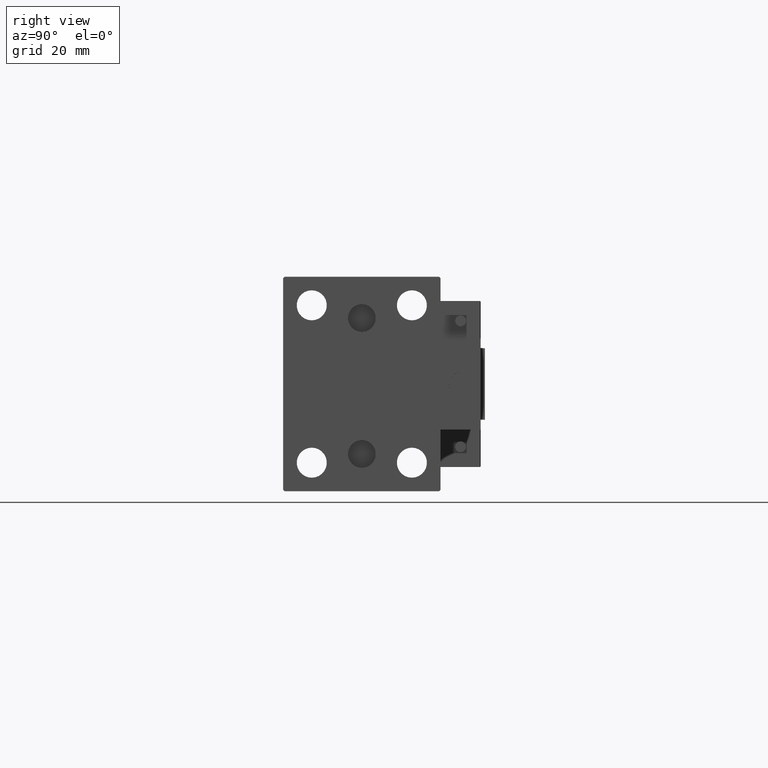
[diagram: clean part render]
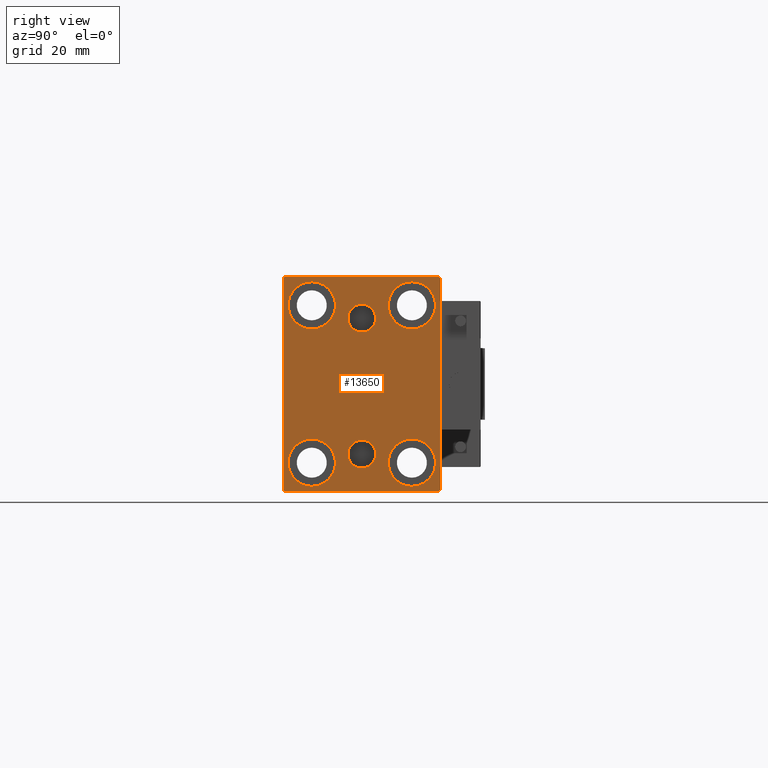
[diagram: same view with one face highlighted and labeled with its STEP entity id]
A machine part, right view. The second image highlights one B-rep face of the part: STEP entity #13650.
In plain terms, the highlighted planar face has unit normal (1, 0, 0).
Its self-contained STEP definition (entity closure, byte-faithful):
#346 = EDGE_CURVE ( 'NONE', #24709, #14727, #20099, .T. ) ;
#503 = AXIS2_PLACEMENT_3D ( 'NONE', #25691, #14203, #26458 ) ;
#611 = EDGE_CURVE ( 'NONE', #32002, #11946, #22397, .T. ) ;
#1057 = CARTESIAN_POINT ( 'NONE',  ( 135.0000000000000000, 17.50000000000000355, 27.49999999999999645 ) ) ;
#1533 = AXIS2_PLACEMENT_3D ( 'NONE', #27899, #44313, #43815 ) ;
#1645 = CIRCLE ( 'NONE', #30806, 8.249999999999992895 ) ;
#1769 = LINE ( 'NONE', #41937, #25521 ) ;
#1827 = CIRCLE ( 'NONE', #41815, 4.859999999999999432 ) ;
#2382 = ORIENTED_EDGE ( 'NONE', *, *, #43770, .T. ) ;
#2464 = CARTESIAN_POINT ( 'NONE',  ( 135.0000000000000000, 17.49999999999999645, -27.50000000000000355 ) ) ;
#2597 = EDGE_LOOP ( 'NONE', ( #34780, #27826 ) ) ;
#2898 = DIRECTION ( 'NONE',  ( -1.000000000000000000, -0.000000000000000000, -0.000000000000000000 ) ) ;
#2957 = CARTESIAN_POINT ( 'NONE',  ( 135.0000000000000000, -27.00000000000001776, -37.50000000000000000 ) ) ;
#3002 = CIRCLE ( 'NONE', #503, 8.249999999999992895 ) ;
#3381 = EDGE_CURVE ( 'NONE', #24935, #34327, #43378, .T. ) ;
#3666 = DIRECTION ( 'NONE',  ( 0.000000000000000000, 0.000000000000000000, 1.000000000000000000 ) ) ;
#4171 = VERTEX_POINT ( 'NONE', #37946 ) ;
#4650 = CARTESIAN_POINT ( 'NONE',  ( 135.0000000000000000, 17.49999999999999645, -27.50000000000000355 ) ) ;
#4865 = DIRECTION ( 'NONE',  ( 0.000000000000000000, 1.000000000000000000, 0.000000000000000000 ) ) ;
#5160 = DIRECTION ( 'NONE',  ( 0.000000000000000000, 0.000000000000000000, 1.000000000000000000 ) ) ;
#5422 = ORIENTED_EDGE ( 'NONE', *, *, #37830, .T. ) ;
#5835 = CARTESIAN_POINT ( 'NONE',  ( 135.0000000000000000, 0.000000000000000000, 0.000000000000000000 ) ) ;
#6085 = FACE_BOUND ( 'NONE', #13701, .T. ) ;
#6199 = DIRECTION ( 'NONE',  ( 1.000000000000000000, 0.000000000000000000, -0.000000000000000000 ) ) ;
#6921 = AXIS2_PLACEMENT_3D ( 'NONE', #39655, #2898, #3666 ) ;
#6972 = ORIENTED_EDGE ( 'NONE', *, *, #3381, .T. ) ;
#7176 = ORIENTED_EDGE ( 'NONE', *, *, #45631, .T. ) ;
#7182 = CARTESIAN_POINT ( 'NONE',  ( 135.0000000000000000, 27.49999999999999645, 37.00000000000004263 ) ) ;
#7245 = LINE ( 'NONE', #12686, #18157 ) ;
#8057 = CARTESIAN_POINT ( 'NONE',  ( 135.0000000000000000, 27.00000000000002487, 37.50000000000000711 ) ) ;
#8370 = EDGE_CURVE ( 'NONE', #10464, #4171, #7245, .T. ) ;
#8695 = CIRCLE ( 'NONE', #16083, 4.859999999999999432 ) ;
#8724 = CARTESIAN_POINT ( 'NONE',  ( 135.0000000000000000, -32.24999999999963052, -32.25000000000052580 ) ) ;
#9229 = DIRECTION ( 'NONE',  ( 1.000000000000000000, 0.000000000000000000, 0.000000000000000000 ) ) ;
#9394 = VERTEX_POINT ( 'NONE', #17512 ) ;
#9502 = ORIENTED_EDGE ( 'NONE', *, *, #611, .T. ) ;
#9552 = AXIS2_PLACEMENT_3D ( 'NONE', #11990, #35217, #27909 ) ;
#9622 = EDGE_CURVE ( 'NONE', #51566, #45605, #24027, .T. ) ;
#10464 = VERTEX_POINT ( 'NONE', #2957 ) ;
#10823 = DIRECTION ( 'NONE',  ( 0.000000000000000000, 0.000000000000000000, 1.000000000000000000 ) ) ;
#11665 = DIRECTION ( 'NONE',  ( 0.000000000000000000, -1.000000000000000000, -1.261617073437677999E-16 ) ) ;
#11946 = VERTEX_POINT ( 'NONE', #8057 ) ;
#11990 = CARTESIAN_POINT ( 'NONE',  ( 135.0000000000000000, -17.50000000000000355, -27.50000000000000355 ) ) ;
#12139 = DIRECTION ( 'NONE',  ( -1.000000000000000000, -0.000000000000000000, -0.000000000000000000 ) ) ;
#12647 = VECTOR ( 'NONE', #23349, 1000.000000000000000 ) ;
#12686 = CARTESIAN_POINT ( 'NONE',  ( 135.0000000000000000, -27.50000000000000355, -37.50000000000000000 ) ) ;
#12739 = AXIS2_PLACEMENT_3D ( 'NONE', #4650, #36232, #5160 ) ;
#13042 = DIRECTION ( 'NONE',  ( 0.000000000000000000, 0.000000000000000000, 1.000000000000000000 ) ) ;
#13185 = CARTESIAN_POINT ( 'NONE',  ( 135.0000000000000000, -17.49999999999999645, 19.25000000000000000 ) ) ;
#13650 = ADVANCED_FACE ( 'NONE', ( #21228, #6085, #49129, #29052, #21749, #33466, #41575 ), #44955, .T. ) ;
#13674 = DIRECTION ( 'NONE',  ( 0.000000000000000000, 0.000000000000000000, 1.000000000000000000 ) ) ;
#13701 = EDGE_LOOP ( 'NONE', ( #42667, #43064 ) ) ;
#14030 = CARTESIAN_POINT ( 'NONE',  ( 135.0000000000000000, -17.49999999999999645, 35.74999999999999289 ) ) ;
#14203 = DIRECTION ( 'NONE',  ( -1.000000000000000000, -0.000000000000000000, -0.000000000000000000 ) ) ;
#14727 = VERTEX_POINT ( 'NONE', #36038 ) ;
#14879 = VERTEX_POINT ( 'NONE', #33444 ) ;
#14997 = LINE ( 'NONE', #15261, #12647 ) ;
#15261 = CARTESIAN_POINT ( 'NONE',  ( 135.0000000000000000, 27.50000000000000355, -37.50000000000000000 ) ) ;
#15280 = EDGE_CURVE ( 'NONE', #25076, #38659, #1645, .T. ) ;
#15461 = CARTESIAN_POINT ( 'NONE',  ( 135.0000000000000000, -17.50000000000000355, -27.50000000000000355 ) ) ;
#15704 = CIRCLE ( 'NONE', #25672, 8.250000000000000000 ) ;
#16061 = VECTOR ( 'NONE', #33229, 1000.000000000000114 ) ;
#16083 = AXIS2_PLACEMENT_3D ( 'NONE', #41414, #6199, #26021 ) ;
#16516 = ORIENTED_EDGE ( 'NONE', *, *, #346, .T. ) ;
#16643 = DIRECTION ( 'NONE',  ( -0.000000000000000000, -0.7071067811865524577, 0.7071067811865426878 ) ) ;
#16977 = DIRECTION ( 'NONE',  ( -1.000000000000000000, -0.000000000000000000, -0.000000000000000000 ) ) ;
#17019 = VERTEX_POINT ( 'NONE', #13185 ) ;
#17512 = CARTESIAN_POINT ( 'NONE',  ( 135.0000000000000000, -27.00000000000001776, 37.50000000000000000 ) ) ;
#17624 = AXIS2_PLACEMENT_3D ( 'NONE', #28060, #12139, #51282 ) ;
#18027 = CARTESIAN_POINT ( 'NONE',  ( 135.0000000000000000, 17.50000000000000355, 19.25000000000000000 ) ) ;
#18157 = VECTOR ( 'NONE', #4865, 1000.000000000000000 ) ;
#18431 = CARTESIAN_POINT ( 'NONE',  ( 135.0000000000000000, -27.50000000000000355, 37.00000000000001421 ) ) ;
#19292 = EDGE_CURVE ( 'NONE', #9394, #24709, #48769, .T. ) ;
#19814 = EDGE_CURVE ( 'NONE', #50087, #17019, #39255, .T. ) ;
#19817 = VECTOR ( 'NONE', #16643, 1000.000000000000000 ) ;
#19883 = ORIENTED_EDGE ( 'NONE', *, *, #19292, .T. ) ;
#20099 = LINE ( 'NONE', #31831, #46462 ) ;
#20708 = AXIS2_PLACEMENT_3D ( 'NONE', #5835, #9229, #45213 ) ;
#20786 = EDGE_LOOP ( 'NONE', ( #22116, #19883, #16516, #47922, #51250, #7176, #42726, #9502 ) ) ;
#21044 = EDGE_CURVE ( 'NONE', #42396, #32002, #14997, .T. ) ;
#21084 = EDGE_CURVE ( 'NONE', #30205, #14879, #1827, .T. ) ;
#21228 = FACE_BOUND ( 'NONE', #45937, .T. ) ;
#21481 = EDGE_LOOP ( 'NONE', ( #2382, #41692 ) ) ;
#21749 = FACE_BOUND ( 'NONE', #30138, .T. ) ;
#22116 = ORIENTED_EDGE ( 'NONE', *, *, #50132, .T. ) ;
#22397 = LINE ( 'NONE', #50305, #19817 ) ;
#23168 = EDGE_CURVE ( 'NONE', #14727, #10464, #51523, .T. ) ;
#23349 = DIRECTION ( 'NONE',  ( 0.000000000000000000, -9.251858538542970348E-17, 1.000000000000000000 ) ) ;
#23960 = DIRECTION ( 'NONE',  ( 0.000000000000000000, 0.000000000000000000, -1.000000000000000000 ) ) ;
#24005 = DIRECTION ( 'NONE',  ( 0.000000000000000000, 0.000000000000000000, -1.000000000000000000 ) ) ;
#24027 = CIRCLE ( 'NONE', #1533, 4.859999999999999432 ) ;
#24709 = VERTEX_POINT ( 'NONE', #18431 ) ;
#24935 = VERTEX_POINT ( 'NONE', #49659 ) ;
#25043 = CARTESIAN_POINT ( 'NONE',  ( 135.0000000000000000, -32.25000000000000711, 32.25000000000000711 ) ) ;
#25076 = VERTEX_POINT ( 'NONE', #27214 ) ;
#25367 = ORIENTED_EDGE ( 'NONE', *, *, #26732, .T. ) ;
#25504 = CARTESIAN_POINT ( 'NONE',  ( 135.0000000000000000, -3.571693674697836683E-15, 18.14000000000000767 ) ) ;
#25521 = VECTOR ( 'NONE', #26022, 1000.000000000000114 ) ;
#25672 = AXIS2_PLACEMENT_3D ( 'NONE', #15461, #31360, #40467 ) ;
#25691 = CARTESIAN_POINT ( 'NONE',  ( 135.0000000000000000, -17.49999999999999645, 27.49999999999999645 ) ) ;
#26014 = ORIENTED_EDGE ( 'NONE', *, *, #15280, .T. ) ;
#26021 = DIRECTION ( 'NONE',  ( 0.000000000000000000, 0.000000000000000000, 1.000000000000000000 ) ) ;
#26022 = DIRECTION ( 'NONE',  ( -0.000000000000000000, 0.7071067811865474617, 0.7071067811865474617 ) ) ;
#26458 = DIRECTION ( 'NONE',  ( 0.000000000000000000, 0.000000000000000000, 1.000000000000000000 ) ) ;
#26732 = EDGE_CURVE ( 'NONE', #38659, #25076, #42822, .T. ) ;
#27214 = CARTESIAN_POINT ( 'NONE',  ( 135.0000000000000000, 17.50000000000000355, 35.74999999999999289 ) ) ;
#27587 = LINE ( 'NONE', #51309, #40672 ) ;
#27826 = ORIENTED_EDGE ( 'NONE', *, *, #40708, .T. ) ;
#27899 = CARTESIAN_POINT ( 'NONE',  ( 135.0000000000000000, -3.571693674697836683E-15, 23.00000000000000711 ) ) ;
#27909 = DIRECTION ( 'NONE',  ( 0.000000000000000000, 0.000000000000000000, 1.000000000000000000 ) ) ;
#28060 = CARTESIAN_POINT ( 'NONE',  ( 135.0000000000000000, -17.49999999999999645, 27.49999999999999645 ) ) ;
#28448 = VECTOR ( 'NONE', #49552, 1000.000000000000114 ) ;
#29052 = FACE_BOUND ( 'NONE', #21481, .T. ) ;
#30138 = EDGE_LOOP ( 'NONE', ( #25367, #26014 ) ) ;
#30205 = VERTEX_POINT ( 'NONE', #49406 ) ;
#30370 = DIRECTION ( 'NONE',  ( -1.000000000000000000, -0.000000000000000000, -0.000000000000000000 ) ) ;
#30806 = AXIS2_PLACEMENT_3D ( 'NONE', #1057, #16977, #13042 ) ;
#31360 = DIRECTION ( 'NONE',  ( -1.000000000000000000, -0.000000000000000000, -0.000000000000000000 ) ) ;
#31831 = CARTESIAN_POINT ( 'NONE',  ( 135.0000000000000000, -27.50000000000000355, 37.50000000000000000 ) ) ;
#32002 = VERTEX_POINT ( 'NONE', #7182 ) ;
#33229 = DIRECTION ( 'NONE',  ( -0.000000000000000000, 0.7071067811865573427, -0.7071067811865376918 ) ) ;
#33444 = CARTESIAN_POINT ( 'NONE',  ( 135.0000000000000000, 3.000384657911015074E-15, -29.35999999999999233 ) ) ;
#33466 = FACE_BOUND ( 'NONE', #2597, .T. ) ;
#34272 = CARTESIAN_POINT ( 'NONE',  ( 135.0000000000000000, 27.50000000000000355, -37.00000000000001421 ) ) ;
#34327 = VERTEX_POINT ( 'NONE', #49160 ) ;
#34780 = ORIENTED_EDGE ( 'NONE', *, *, #49673, .T. ) ;
#34938 = VERTEX_POINT ( 'NONE', #43722 ) ;
#35217 = DIRECTION ( 'NONE',  ( -1.000000000000000000, -0.000000000000000000, -0.000000000000000000 ) ) ;
#35451 = CARTESIAN_POINT ( 'NONE',  ( 135.0000000000000000, -3.571693674697836683E-15, 23.00000000000000711 ) ) ;
#35580 = CIRCLE ( 'NONE', #38901, 4.859999999999999432 ) ;
#36038 = CARTESIAN_POINT ( 'NONE',  ( 135.0000000000000000, -27.50000000000000355, -37.00000000000002842 ) ) ;
#36232 = DIRECTION ( 'NONE',  ( -1.000000000000000000, -0.000000000000000000, -0.000000000000000000 ) ) ;
#36849 = EDGE_CURVE ( 'NONE', #14879, #30205, #8695, .T. ) ;
#36958 = EDGE_LOOP ( 'NONE', ( #6972, #5422 ) ) ;
#37830 = EDGE_CURVE ( 'NONE', #34327, #24935, #51106, .T. ) ;
#37946 = CARTESIAN_POINT ( 'NONE',  ( 135.0000000000000000, 27.00000000000001776, -37.50000000000000000 ) ) ;
#38440 = CARTESIAN_POINT ( 'NONE',  ( 135.0000000000000000, -2.976515330312223406E-15, 27.86000000000000654 ) ) ;
#38659 = VERTEX_POINT ( 'NONE', #18027 ) ;
#38901 = AXIS2_PLACEMENT_3D ( 'NONE', #35451, #47442, #23960 ) ;
#39255 = CIRCLE ( 'NONE', #17624, 8.249999999999992895 ) ;
#39655 = CARTESIAN_POINT ( 'NONE',  ( 135.0000000000000000, 17.50000000000000355, 27.49999999999999645 ) ) ;
#40467 = DIRECTION ( 'NONE',  ( 0.000000000000000000, 0.000000000000000000, 1.000000000000000000 ) ) ;
#40672 = VECTOR ( 'NONE', #11665, 1000.000000000000000 ) ;
#40708 = EDGE_CURVE ( 'NONE', #34938, #51392, #48675, .T. ) ;
#41414 = CARTESIAN_POINT ( 'NONE',  ( 135.0000000000000000, 3.000384657911015074E-15, -24.49999999999999289 ) ) ;
#41575 = FACE_OUTER_BOUND ( 'NONE', #20786, .T. ) ;
#41692 = ORIENTED_EDGE ( 'NONE', *, *, #19814, .T. ) ;
#41815 = AXIS2_PLACEMENT_3D ( 'NONE', #42394, #46555, #10823 ) ;
#41937 = CARTESIAN_POINT ( 'NONE',  ( 135.0000000000000000, 32.25000000000000711, -32.25000000000000711 ) ) ;
#42394 = CARTESIAN_POINT ( 'NONE',  ( 135.0000000000000000, 3.000384657911015074E-15, -24.49999999999999289 ) ) ;
#42396 = VERTEX_POINT ( 'NONE', #34272 ) ;
#42667 = ORIENTED_EDGE ( 'NONE', *, *, #36849, .F. ) ;
#42726 = ORIENTED_EDGE ( 'NONE', *, *, #21044, .T. ) ;
#42822 = CIRCLE ( 'NONE', #6921, 8.249999999999992895 ) ;
#43064 = ORIENTED_EDGE ( 'NONE', *, *, #21084, .F. ) ;
#43378 = CIRCLE ( 'NONE', #47534, 8.250000000000000000 ) ;
#43722 = CARTESIAN_POINT ( 'NONE',  ( 135.0000000000000000, -17.50000000000000355, -19.25000000000000355 ) ) ;
#43770 = EDGE_CURVE ( 'NONE', #17019, #50087, #3002, .T. ) ;
#43815 = DIRECTION ( 'NONE',  ( 0.000000000000000000, 0.000000000000000000, -1.000000000000000000 ) ) ;
#44313 = DIRECTION ( 'NONE',  ( 1.000000000000000000, 0.000000000000000000, 0.000000000000000000 ) ) ;
#44955 = PLANE ( 'NONE',  #20708 ) ;
#45093 = ORIENTED_EDGE ( 'NONE', *, *, #46293, .F. ) ;
#45213 = DIRECTION ( 'NONE',  ( 0.000000000000000000, 0.000000000000000000, -1.000000000000000000 ) ) ;
#45605 = VERTEX_POINT ( 'NONE', #25504 ) ;
#45631 = EDGE_CURVE ( 'NONE', #4171, #42396, #1769, .T. ) ;
#45937 = EDGE_LOOP ( 'NONE', ( #45093, #48923 ) ) ;
#46293 = EDGE_CURVE ( 'NONE', #45605, #51566, #35580, .T. ) ;
#46462 = VECTOR ( 'NONE', #24005, 1000.000000000000000 ) ;
#46555 = DIRECTION ( 'NONE',  ( 1.000000000000000000, 0.000000000000000000, -0.000000000000000000 ) ) ;
#47442 = DIRECTION ( 'NONE',  ( 1.000000000000000000, 0.000000000000000000, 0.000000000000000000 ) ) ;
#47534 = AXIS2_PLACEMENT_3D ( 'NONE', #2464, #30370, #13674 ) ;
#47922 = ORIENTED_EDGE ( 'NONE', *, *, #23168, .T. ) ;
#48675 = CIRCLE ( 'NONE', #9552, 8.250000000000000000 ) ;
#48769 = LINE ( 'NONE', #25043, #28448 ) ;
#48923 = ORIENTED_EDGE ( 'NONE', *, *, #9622, .F. ) ;
#49129 = FACE_BOUND ( 'NONE', #36958, .T. ) ;
#49160 = CARTESIAN_POINT ( 'NONE',  ( 135.0000000000000000, 17.49999999999999645, -19.25000000000000355 ) ) ;
#49406 = CARTESIAN_POINT ( 'NONE',  ( 135.0000000000000000, 3.595563002296627957E-15, -19.63999999999999346 ) ) ;
#49552 = DIRECTION ( 'NONE',  ( 0.000000000000000000, -0.7071067811865474617, -0.7071067811865474617 ) ) ;
#49659 = CARTESIAN_POINT ( 'NONE',  ( 135.0000000000000000, 17.49999999999999645, -35.75000000000000711 ) ) ;
#49661 = CARTESIAN_POINT ( 'NONE',  ( 135.0000000000000000, -17.50000000000000355, -35.75000000000000711 ) ) ;
#49673 = EDGE_CURVE ( 'NONE', #51392, #34938, #15704, .T. ) ;
#50087 = VERTEX_POINT ( 'NONE', #14030 ) ;
#50132 = EDGE_CURVE ( 'NONE', #11946, #9394, #27587, .T. ) ;
#50305 = CARTESIAN_POINT ( 'NONE',  ( 135.0000000000000000, 32.24999999999982947, 32.25000000000027001 ) ) ;
#51106 = CIRCLE ( 'NONE', #12739, 8.250000000000000000 ) ;
#51250 = ORIENTED_EDGE ( 'NONE', *, *, #8370, .T. ) ;
#51282 = DIRECTION ( 'NONE',  ( 0.000000000000000000, 0.000000000000000000, 1.000000000000000000 ) ) ;
#51309 = CARTESIAN_POINT ( 'NONE',  ( 135.0000000000000000, 27.49999999999999645, 37.50000000000000711 ) ) ;
#51392 = VERTEX_POINT ( 'NONE', #49661 ) ;
#51523 = LINE ( 'NONE', #8724, #16061 ) ;
#51566 = VERTEX_POINT ( 'NONE', #38440 ) ;